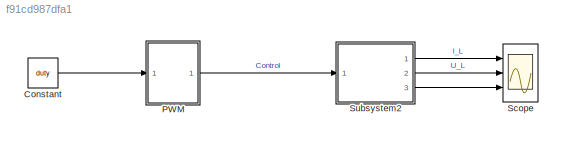
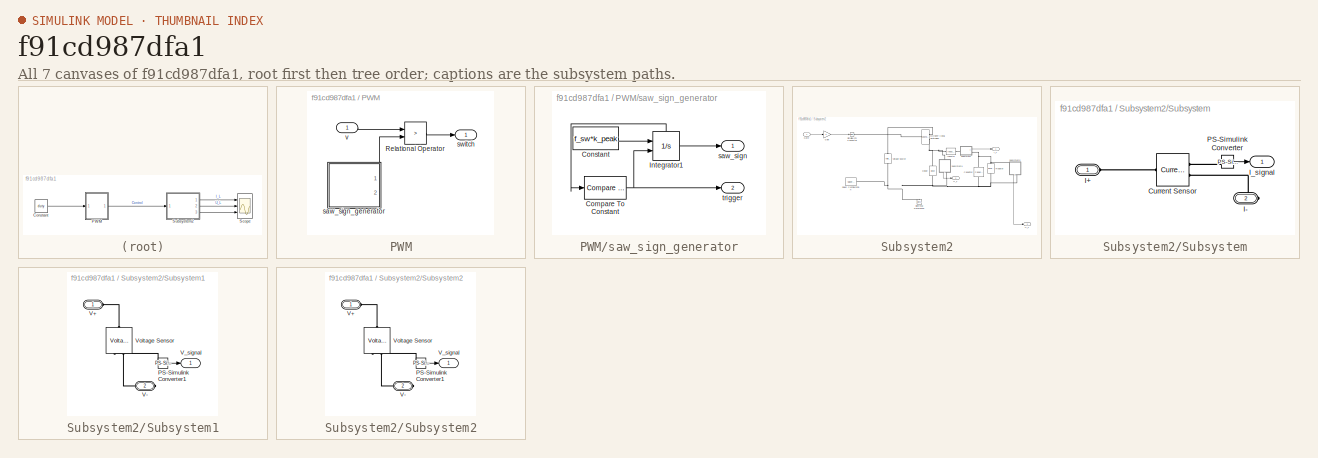
[diagram: thumbnail index - all 7 canvases of the model, root first then tree order]
MODEL slx_f91cd987dfa1
KIND model
CONFIG AbsTol = auto
CONFIG EnableMultiTasking = off
CONFIG FixedStep = auto
CONFIG MaxStep = auto
CONFIG MinStep = auto
CONFIG RelTol = 1e-3
CONFIG SampleTimeConstraint = Unconstrained
CONFIG Solver = VariableStepAuto
CONFIG SolverName = VariableStepAuto
CONFIG StartTime = 0.0
CONFIG StopTime = 0.1
BLOCK [Constant] Constant
  Value = duty
BLOCK [SubSystem] PWM
  Ports = [1, 1]
  RequestExecContextInheritance = off
BLOCK [RelationalOperator] PWM/Relational Operator
  InputSameDT = off
  Operator = >
  OutDataTypeStr = boolean
  Ports = [2, 1]
  ZeroCross = off
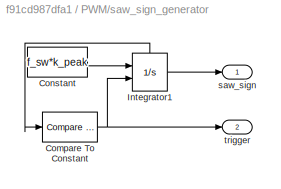
BLOCK [SubSystem] PWM/saw_sign_generator
  Ports = [0, 2]
  RequestExecContextInheritance = off
BLOCK [Reference] PWM/saw_sign_generator/Compare To Constant  REF=simulink/Logic and Bit
Operations/Compare
To Constant
  Ports = [1, 1]
  SourceBlock = simulink/Logic and Bit\nOperations/Compare\nTo Constant
  SourceProductBaseCode = SL
  SourceProductName = Simulink
  SourceType = Compare To Constant
BLOCK [Constant] PWM/saw_sign_generator/Constant
  Value = f_sw*k_peak
BLOCK [Integrator] PWM/saw_sign_generator/Integrator1
  ExternalReset = rising
  Ports = [2, 1, 0, 0, 1]
  ShowStatePort = on
BLOCK [Outport] PWM/saw_sign_generator/saw_sign
  IconDisplay = Port number
  VectorParamsAs1DForOutWhenUnconnected = off
BLOCK [Outport] PWM/saw_sign_generator/trigger
  IconDisplay = Port number
  Port = 2
  VectorParamsAs1DForOutWhenUnconnected = off
BLOCK [Outport] PWM/switch
  IconDisplay = Port number
  VectorParamsAs1DForOutWhenUnconnected = off
BLOCK [Inport] PWM/v
  IconDisplay = Port number
BLOCK [Scope] Scope
  Floating = off
  NumInputPorts = 3
  Ports = [3]
  ScopeSpecificationString = Simulink.scopes.TimeScopeBlockCfg('CurrentConfiguration', extmgr.ConfigurationSet(extmgr.Configuration('Core','General UI',true),extmgr.Configuration('Core','Source UI',true),extmgr.Configuration('Sources','WiredSimulink',true),extmgr.Configuration('Visuals','Time Domain',true,'SerializedDisplays',{struct('MinYLimReal','1.48315','MaxYLimReal','2.63702','YLabelReal','','MinYLimMag','1.48315','MaxYL...<+1870ch>
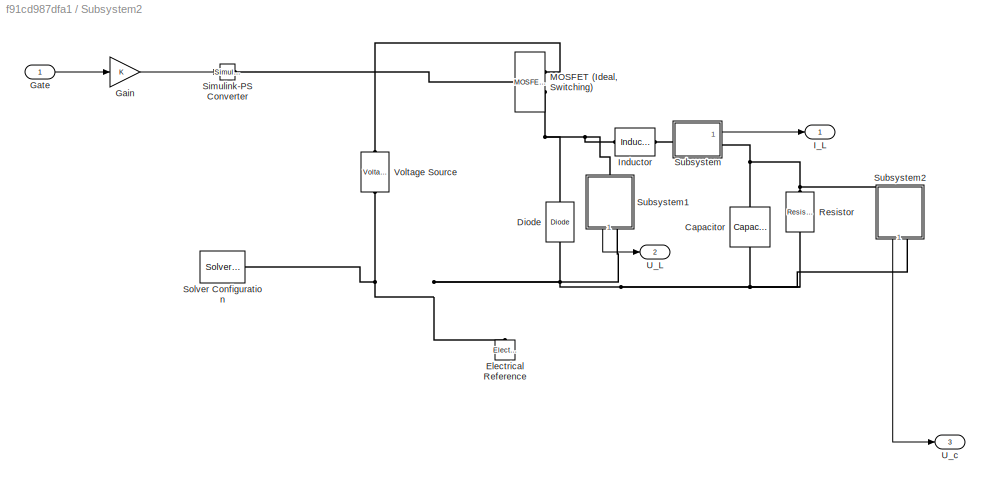
BLOCK [SubSystem] Subsystem2
  Ports = [1, 3]
  RequestExecContextInheritance = off
BLOCK [Reference] Subsystem2/Capacitor  REF=fl_lib/Electrical/Electrical Elements/Capacitor
  Ports = [0, 0, 0, 0, 0, 1, 1]
  SourceBlock = fl_lib/Electrical/Electrical Elements/Capacitor
  SourceProductBaseCode = SS
  SourceProductName = Simscape
  SourceType = Capacitor
BLOCK [Reference] Subsystem2/Diode  REF=ee_lib/Semiconductors &
Converters/Diode
  Ports = [0, 0, 0, 0, 0, 1, 1]
  SourceBlock = ee_lib/Semiconductors &\nConverters/Diode
  SourceProductBaseCode = PS
  SourceProductName = Simscape Electrical
  SourceType = Diode
BLOCK [Reference] Subsystem2/Electrical Reference  REF=fl_lib/Electrical/Electrical Elements/Electrical Reference
  Ports = [0, 0, 0, 0, 0, 1]
  SourceBlock = fl_lib/Electrical/Electrical Elements/Electrical Reference
  SourceProductBaseCode = SS
  SourceProductName = Simscape
  SourceType = Electrical Reference
BLOCK [Gain] Subsystem2/Gain
  OutDataTypeStr = double
  ParamDataTypeStr = Inherit: Inherit via internal rule
  SaturateOnIntegerOverflow = off
BLOCK [Inport] Subsystem2/Gate
  IconDisplay = Port number
BLOCK [Outport] Subsystem2/I_L
  IconDisplay = Port number
BLOCK [Reference] Subsystem2/Inductor  REF=ee_lib/Passive/Inductor
  Ports = [0, 0, 0, 0, 0, 1, 1]
  SourceBlock = ee_lib/Passive/Inductor
  SourceProductBaseCode = PS
  SourceProductName = Simscape Electrical
  SourceType = Inductor
BLOCK [Reference] Subsystem2/MOSFET (Ideal, Switching)  REF=ee_lib/Semiconductors &
Converters/MOSFET
(Ideal,
Switching)
  Ports = [0, 0, 0, 0, 0, 1, 2]
  SourceBlock = ee_lib/Semiconductors &\nConverters/MOSFET\n(Ideal,\nSwitching)
  SourceProductBaseCode = PS
  SourceProductName = Simscape Electrical
  SourceType = MOSFET\n(Ideal,\nSwitching)
BLOCK [Reference] Subsystem2/Resistor  REF=ee_lib/Passive/Resistor
  Ports = [0, 0, 0, 0, 0, 1, 1]
  SourceBlock = ee_lib/Passive/Resistor
  SourceProductBaseCode = PS
  SourceProductName = Simscape Electrical
  SourceType = Resistor
BLOCK [Reference] Subsystem2/Simulink-PS Converter  REF=nesl_utility/Simulink-PS
Converter
  Ports = [1, 0, 0, 0, 0, 0, 1]
  SourceBlock = nesl_utility/Simulink-PS\nConverter
  SourceProductBaseCode = SS
  SourceProductName = Simscape
  SourceType = Simulink-PS\nConverter
BLOCK [Reference] Subsystem2/Solver Configuration  REF=nesl_utility/Solver
Configuration
  Ports = [0, 0, 0, 0, 0, 0, 1]
  SourceBlock = nesl_utility/Solver\nConfiguration
  SourceProductBaseCode = SS
  SourceProductName = Simscape
  SourceType = Solver\nConfiguration
BLOCK [SubSystem] Subsystem2/Subsystem
  Ports = [0, 1, 0, 0, 0, 1, 1]
  RequestExecContextInheritance = off
BLOCK [Reference] Subsystem2/Subsystem/Current Sensor  REF=fl_lib/Electrical/Electrical Sensors/Current Sensor
  Ports = [0, 0, 0, 0, 0, 1, 2]
  SourceBlock = fl_lib/Electrical/Electrical Sensors/Current Sensor
  SourceProductBaseCode = SS
  SourceProductName = Simscape
  SourceType = Current Sensor
BLOCK [PMIOPort] Subsystem2/Subsystem/I+
  Side = Left
BLOCK [PMIOPort] Subsystem2/Subsystem/I-
  Port = 2
  Side = Right
BLOCK [Outport] Subsystem2/Subsystem/I_signal
  IconDisplay = Port number
BLOCK [Reference] Subsystem2/Subsystem/PS-Simulink Converter  REF=nesl_utility/PS-Simulink
Converter
  Ports = [0, 1, 0, 0, 0, 1]
  SourceBlock = nesl_utility/PS-Simulink\nConverter
  SourceProductBaseCode = SS
  SourceProductName = Simscape
  SourceType = PS-Simulink\nConverter
BLOCK [SubSystem] Subsystem2/Subsystem1
  Ports = [0, 1, 0, 0, 0, 1, 1]
  RequestExecContextInheritance = off
BLOCK [Reference] Subsystem2/Subsystem1/PS-Simulink Converter1  REF=nesl_utility/PS-Simulink
Converter
  Ports = [0, 1, 0, 0, 0, 1]
  SourceBlock = nesl_utility/PS-Simulink\nConverter
  SourceProductBaseCode = SS
  SourceProductName = Simscape
  SourceType = PS-Simulink\nConverter
BLOCK [PMIOPort] Subsystem2/Subsystem1/V+
  Side = Left
BLOCK [PMIOPort] Subsystem2/Subsystem1/V-
  Port = 2
  Side = Right
BLOCK [Outport] Subsystem2/Subsystem1/V_signal
  IconDisplay = Port number
BLOCK [Reference] Subsystem2/Subsystem1/Voltage Sensor  REF=fl_lib/Electrical/Electrical Sensors/Voltage Sensor
  Ports = [0, 0, 0, 0, 0, 1, 2]
  SourceBlock = fl_lib/Electrical/Electrical Sensors/Voltage Sensor
  SourceProductBaseCode = SS
  SourceProductName = Simscape
  SourceType = Voltage Sensor
BLOCK [SubSystem] Subsystem2/Subsystem2
  Ports = [0, 1, 0, 0, 0, 1, 1]
  RequestExecContextInheritance = off
BLOCK [Reference] Subsystem2/Subsystem2/PS-Simulink Converter1  REF=nesl_utility/PS-Simulink
Converter
  Ports = [0, 1, 0, 0, 0, 1]
  SourceBlock = nesl_utility/PS-Simulink\nConverter
  SourceProductBaseCode = SS
  SourceProductName = Simscape
  SourceType = PS-Simulink\nConverter
BLOCK [PMIOPort] Subsystem2/Subsystem2/V+
  Side = Left
BLOCK [PMIOPort] Subsystem2/Subsystem2/V-
  Port = 2
  Side = Right
BLOCK [Outport] Subsystem2/Subsystem2/V_signal
  IconDisplay = Port number
BLOCK [Reference] Subsystem2/Subsystem2/Voltage Sensor  REF=fl_lib/Electrical/Electrical Sensors/Voltage Sensor
  Ports = [0, 0, 0, 0, 0, 1, 2]
  SourceBlock = fl_lib/Electrical/Electrical Sensors/Voltage Sensor
  SourceProductBaseCode = SS
  SourceProductName = Simscape
  SourceType = Voltage Sensor
BLOCK [Outport] Subsystem2/U_L
  IconDisplay = Port number
  Port = 2
BLOCK [Outport] Subsystem2/U_c
  IconDisplay = Port number
  Port = 3
BLOCK [Reference] Subsystem2/Voltage Source  REF=ee_lib/Sources/Voltage Source
  Ports = [0, 0, 0, 0, 0, 1, 1]
  SourceBlock = ee_lib/Sources/Voltage Source
  SourceProductBaseCode = PS
  SourceProductName = Simscape Electrical
  SourceType = Voltage Source
LINE Constant:1 -> PWM:1
LINE PWM/Relational Operator:1 -> PWM/switch:1
NET PWM/saw_sign_generator/Compare To Constant:1 -> PWM/saw_sign_generator/Integrator1:2, PWM/saw_sign_generator/trigger:1
LINE PWM/saw_sign_generator/Constant:1 -> PWM/saw_sign_generator/Integrator1:1
LINE PWM/saw_sign_generator/Integrator1:1 -> PWM/saw_sign_generator/saw_sign:1
LINE PWM/saw_sign_generator/Integrator1:state -> PWM/saw_sign_generator/Compare To Constant:1
LINE PWM/saw_sign_generator:1 -> PWM/Relational Operator:2
LINE PWM/v:1 -> PWM/Relational Operator:1
LINE PWM:1 -> Subsystem2:1
LINE Subsystem2/Gain:1 -> Subsystem2/Simulink-PS Converter:1
LINE Subsystem2/Gate:1 -> Subsystem2/Gain:1
LINE Subsystem2/Subsystem/PS-Simulink Converter:1 -> Subsystem2/Subsystem/I_signal:1
LINE Subsystem2/Subsystem1/PS-Simulink Converter1:1 -> Subsystem2/Subsystem1/V_signal:1
LINE Subsystem2/Subsystem1:1 -> Subsystem2/U_L:1
LINE Subsystem2/Subsystem2/PS-Simulink Converter1:1 -> Subsystem2/Subsystem2/V_signal:1
LINE Subsystem2/Subsystem2:1 -> Subsystem2/U_c:1
LINE Subsystem2/Subsystem:1 -> Subsystem2/I_L:1
LINE Subsystem2:1 -> Scope:1
LINE Subsystem2:2 -> Scope:2
LINE Subsystem2:3 -> Scope:3
PNET net1: Subsystem2/Capacitor:LConn1 -- Subsystem2/Resistor:LConn1 -- Subsystem2/Subsystem2:LConn1 -- Subsystem2/Subsystem:RConn1
PNET net2: Subsystem2/Capacitor:RConn1 -- Subsystem2/Diode:LConn1 -- Subsystem2/Electrical Reference:LConn1 -- Subsystem2/Resistor:RConn1 -- Subsystem2/Solver Configuration:RConn1 -- Subsystem2/Subsystem1:RConn1 -- Subsystem2/Subsystem2:RConn1 -- Subsystem2/Voltage Source:RConn1
PNET net3: Subsystem2/Diode:RConn1 -- Subsystem2/Inductor:LConn1 -- Subsystem2/MOSFET (Ideal, Switching):RConn2 -- Subsystem2/Subsystem1:LConn1
PLINE Subsystem2/Inductor:RConn1 -- Subsystem2/Subsystem:LConn1
PLINE Subsystem2/MOSFET (Ideal, Switching):LConn1 -- Subsystem2/Simulink-PS Converter:RConn1
PLINE Subsystem2/MOSFET (Ideal, Switching):RConn1 -- Subsystem2/Voltage Source:LConn1
PLINE Subsystem2/Subsystem/Current Sensor:LConn1 -- Subsystem2/Subsystem/I+:RConn1
PLINE Subsystem2/Subsystem/Current Sensor:RConn1 -- Subsystem2/Subsystem/PS-Simulink Converter:LConn1
PLINE Subsystem2/Subsystem/Current Sensor:RConn2 -- Subsystem2/Subsystem/I-:RConn1
PLINE Subsystem2/Subsystem1/PS-Simulink Converter1:LConn1 -- Subsystem2/Subsystem1/Voltage Sensor:RConn1
PLINE Subsystem2/Subsystem1/V+:RConn1 -- Subsystem2/Subsystem1/Voltage Sensor:LConn1
PLINE Subsystem2/Subsystem1/V-:RConn1 -- Subsystem2/Subsystem1/Voltage Sensor:RConn2
PLINE Subsystem2/Subsystem2/PS-Simulink Converter1:LConn1 -- Subsystem2/Subsystem2/Voltage Sensor:RConn1
PLINE Subsystem2/Subsystem2/V+:RConn1 -- Subsystem2/Subsystem2/Voltage Sensor:LConn1
PLINE Subsystem2/Subsystem2/V-:RConn1 -- Subsystem2/Subsystem2/Voltage Sensor:RConn2
note: NET lines group one-source signal fan-out (src -> all destinations, sorted); 1:1 wires keep LINE; PNET lines group multi-terminal physical nets as a canonical sorted terminal list (undirected conserving connections); 2-terminal nets keep the pairwise PLINE form
